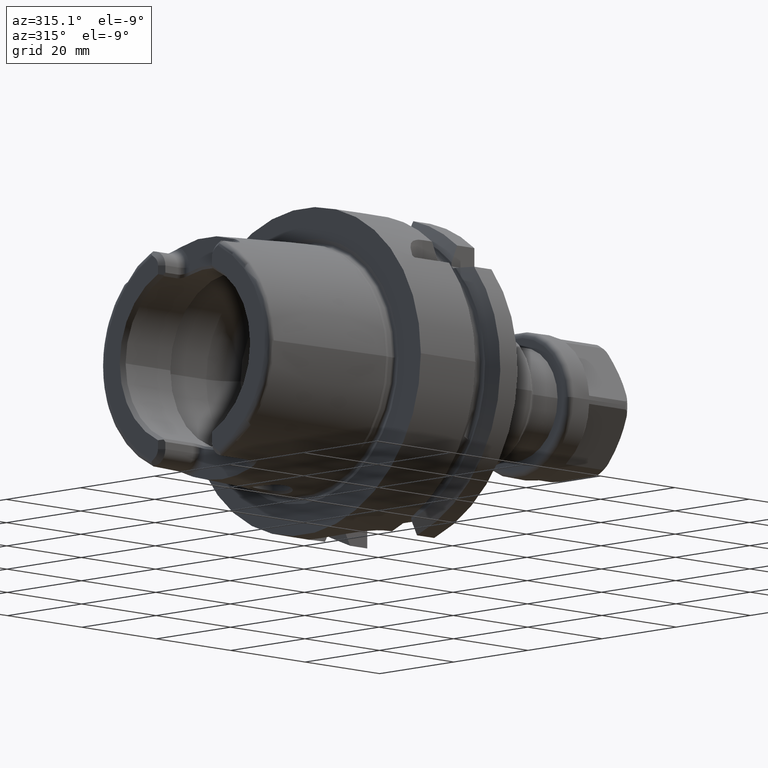
[diagram: clean part render]
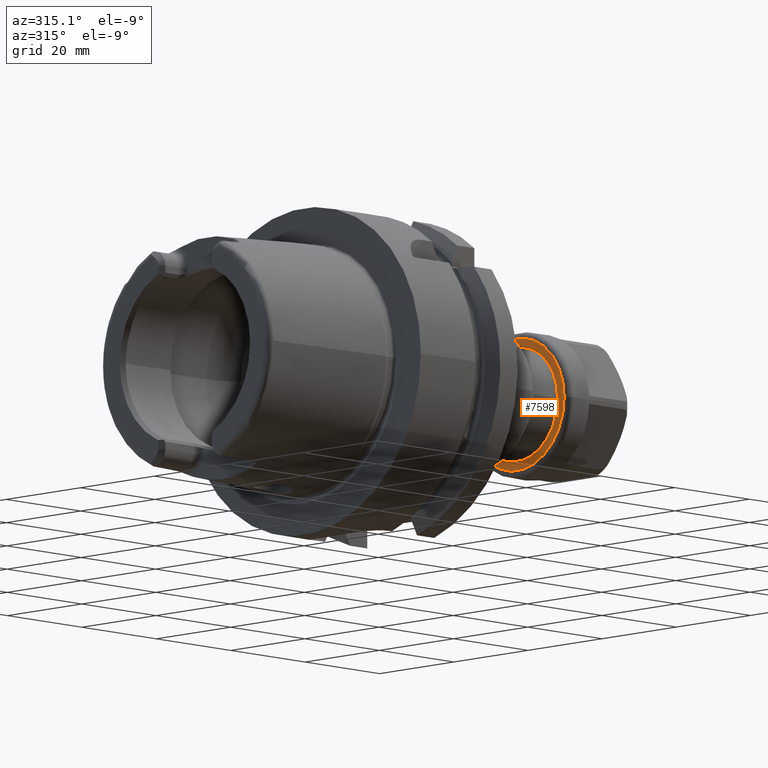
[diagram: same view with one face highlighted and labeled with its STEP entity id]
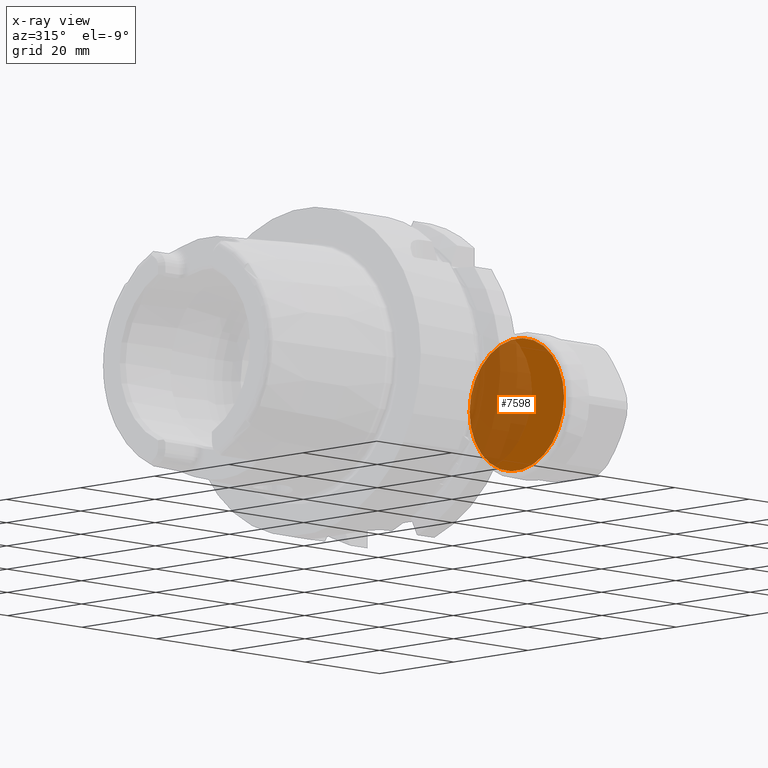
[diagram: x-ray of the same camera — body ghosted, the highlighted face saturated]
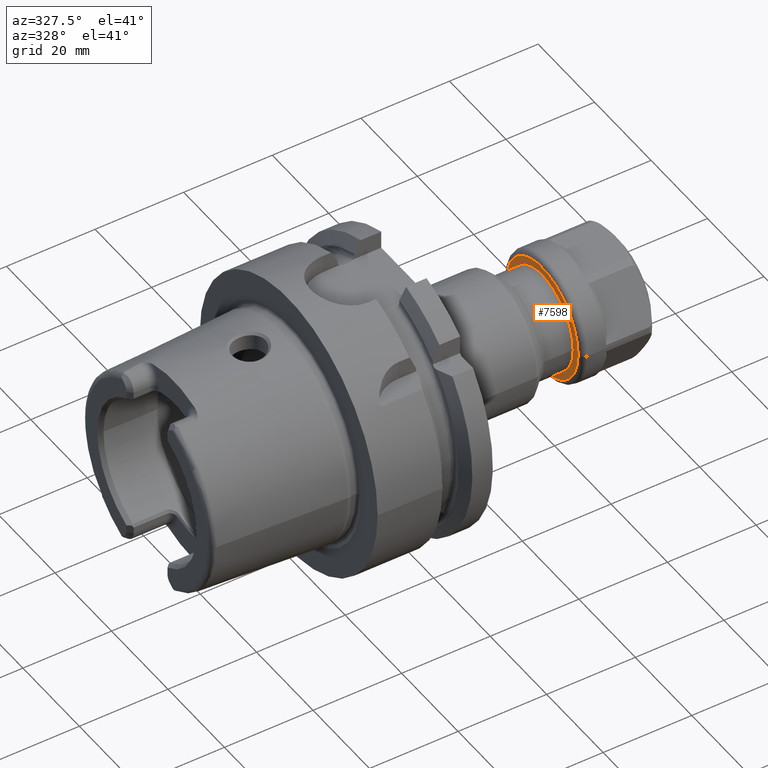
[diagram: same view with one face highlighted and labeled with its STEP entity id]
A machine part, auxiliary view. The second image highlights one B-rep face of the part: STEP entity #7598.
The next image is the same camera in x-ray: the body ghosted, the highlighted face saturated — about 58% of this face is hidden behind the body in this view.
A second angle (auxiliary view) of the same face is appended — the face is thin or edge-on in the first view.
In plain terms, the highlighted planar face has unit normal (1, 0, 0).
Its self-contained STEP definition (entity closure, byte-faithful):
#7090=CARTESIAN_POINT('',(0.E0,0.E0,0.E0));
#7091=DIRECTION('',(-1.E0,0.E0,0.E0));
#7092=DIRECTION('',(0.E0,1.E0,0.E0));
#7093=AXIS2_PLACEMENT_3D('',#7090,#7091,#7092);
#7095=CARTESIAN_POINT('',(0.E0,0.E0,0.E0));
#7096=DIRECTION('',(-1.E0,0.E0,0.E0));
#7097=DIRECTION('',(0.E0,-1.E0,0.E0));
#7098=AXIS2_PLACEMENT_3D('',#7095,#7096,#7097);
#7109=CARTESIAN_POINT('',(0.E0,1.275E1,0.E0));
#7110=CARTESIAN_POINT('',(0.E0,-1.275E1,0.E0));
#7111=VERTEX_POINT('',#7109);
#7112=VERTEX_POINT('',#7110);
#7588=CARTESIAN_POINT('',(0.E0,0.E0,0.E0));
#7589=DIRECTION('',(1.E0,0.E0,0.E0));
#7590=DIRECTION('',(0.E0,-1.E0,0.E0));
#7591=AXIS2_PLACEMENT_3D('',#7588,#7589,#7590);
#7592=PLANE('',#7591);
#7594=ORIENTED_EDGE('',*,*,#7593,.F.);
#7595=ORIENTED_EDGE('',*,*,#7578,.F.);
#7596=EDGE_LOOP('',(#7594,#7595));
#7597=FACE_OUTER_BOUND('',#7596,.F.);
#7598=ADVANCED_FACE('',(#7597),#7592,.F.);
#7094=CIRCLE('',#7093,1.275E1);
#7099=CIRCLE('',#7098,1.275E1);
#7578=EDGE_CURVE('',#7112,#7111,#7099,.T.);
#7593=EDGE_CURVE('',#7111,#7112,#7094,.T.);